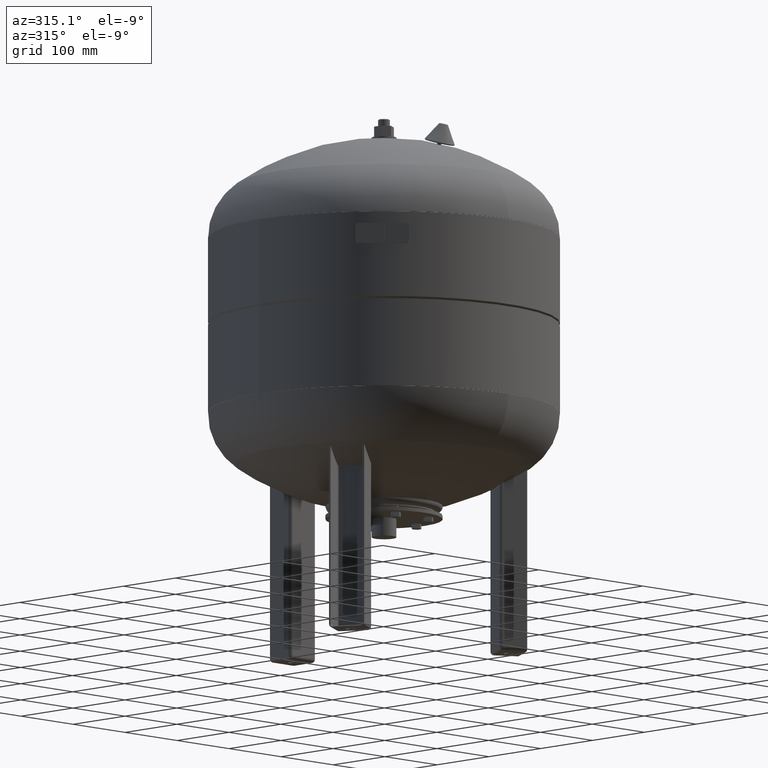
[diagram: clean part render]
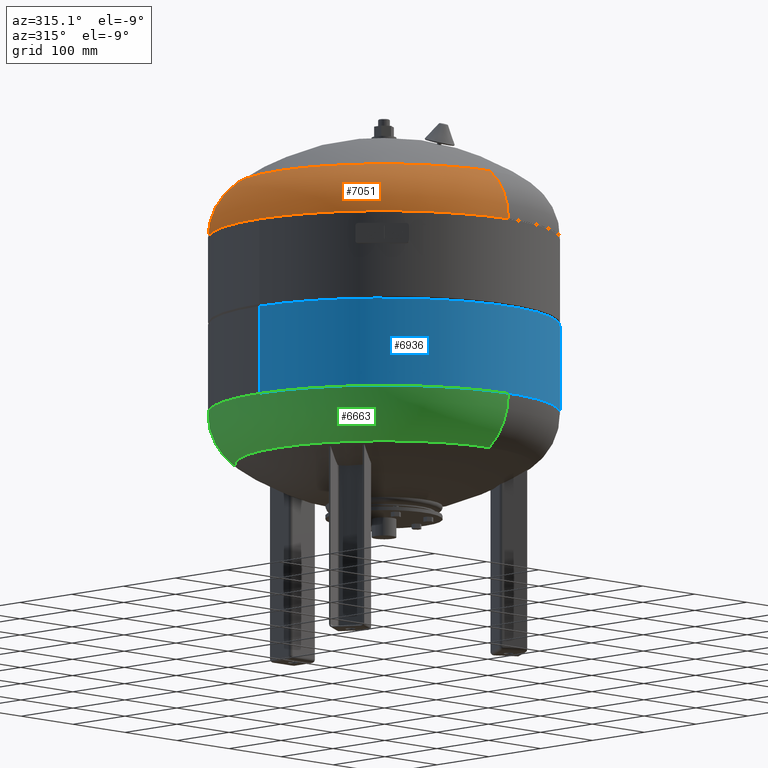
[diagram: same view with three faces highlighted in distinct colors, each labeled with its STEP entity id]
A machine part, auxiliary view with three faces highlighted in distinct colors.
Their STEP definitions:

[orange] entity #7051 — the highlighted toroidal blend (fillet) surface has major radius 154 mm and minor (blend) radius 86 mm.
#6956=CARTESIAN_POINT('',(-240.0,1.639618E-014,565.446016103952270));
#6957=VERTEX_POINT('',#6956);
#6981=CARTESIAN_POINT('',(-3.818310E-014,-239.999999999999970,565.446016103952160));
#6982=VERTEX_POINT('',#6981);
#6990=CARTESIAN_POINT('',(2.963866E-017,1.639618E-014,565.446016103952270));
#6991=DIRECTION('',(0.0,0.0,-1.0));
#6992=DIRECTION('',(-1.0,0.0,0.0));
#6993=AXIS2_PLACEMENT_3D('',#6990,#6991,#6992);
#6994=CIRCLE('',#6993,240.0);
#6995=EDGE_CURVE('',#6982,#6957,#6994,.T.);
#7000=CARTESIAN_POINT('',(-8.792549E-015,1.639618E-014,565.446016103952160));
#7001=DIRECTION('',(-6.645200E-017,3.061617E-016,-1.0));
#7002=DIRECTION('',(0.0,1.0,0.0));
#7003=AXIS2_PLACEMENT_3D('',#7000,#7001,#7002);
#7004=TOROIDAL_SURFACE('',#7003,153.999999999999970,86.0);
#7005=CARTESIAN_POINT('',(-8.792549E-015,240.000000000000030,565.446016103952390));
#7006=VERTEX_POINT('',#7005);
#7007=CARTESIAN_POINT('',(-4.111121E-015,203.325884543761560,635.894274520860560));
#7008=VERTEX_POINT('',#7007);
#7009=CARTESIAN_POINT('',(-8.792549E-015,154.0,565.446016103952270));
#7010=DIRECTION('',(1.0,0.0,0.0));
#7011=DIRECTION('',(0.0,1.0,0.0));
#7012=AXIS2_PLACEMENT_3D('',#7009,#7010,#7011);
#7013=CIRCLE('',#7012,86.0);
#7014=EDGE_CURVE('',#7006,#7008,#7013,.T.);
#7015=ORIENTED_EDGE('',*,*,#7014,.F.);
#7016=CARTESIAN_POINT('',(2.963866E-017,1.639618E-014,565.446016103952270));
#7017=DIRECTION('',(0.0,0.0,-1.0));
#7018=DIRECTION('',(-1.0,0.0,0.0));
#7019=AXIS2_PLACEMENT_3D('',#7016,#7017,#7018);
#7020=CIRCLE('',#7019,240.0);
#7021=EDGE_CURVE('',#6957,#7006,#7020,.T.);
#7022=ORIENTED_EDGE('',*,*,#7021,.F.);
#7023=ORIENTED_EDGE('',*,*,#6995,.F.);
#7024=CARTESIAN_POINT('',(-2.901054E-014,-203.325884543761560,635.894274520860340));
#7025=VERTEX_POINT('',#7024);
#7026=CARTESIAN_POINT('',(-2.765149E-014,-153.999999999999940,565.446016103952050));
#7027=DIRECTION('',(-1.0,0.0,0.0));
#7028=DIRECTION('',(0.0,-1.0,0.0));
#7029=AXIS2_PLACEMENT_3D('',#7026,#7027,#7028);
#7030=CIRCLE('',#7029,86.0);
#7031=EDGE_CURVE('',#6982,#7025,#7030,.T.);
#7032=ORIENTED_EDGE('',*,*,#7031,.T.);
#7033=CARTESIAN_POINT('',(-203.325884543761560,-5.172380E-015,635.894274520860560));
#7034=VERTEX_POINT('',#7033);
#7035=CARTESIAN_POINT('',(4.711066E-015,-5.172380E-015,635.894274520860450));
#7036=DIRECTION('',(0.0,0.0,-1.0));
#7037=DIRECTION('',(-1.0,0.0,0.0));
#7038=AXIS2_PLACEMENT_3D('',#7035,#7036,#7037);
#7039=CIRCLE('',#7038,203.325884543761560);
#7040=EDGE_CURVE('',#7025,#7034,#7039,.T.);
#7041=ORIENTED_EDGE('',*,*,#7040,.T.);
#7042=CARTESIAN_POINT('',(4.711066E-015,-5.172380E-015,635.894274520860450));
#7043=DIRECTION('',(0.0,0.0,-1.0));
#7044=DIRECTION('',(-1.0,0.0,0.0));
#7045=AXIS2_PLACEMENT_3D('',#7042,#7043,#7044);
#7046=CIRCLE('',#7045,203.325884543761560);
#7047=EDGE_CURVE('',#7034,#7008,#7046,.T.);
#7048=ORIENTED_EDGE('',*,*,#7047,.T.);
#7049=EDGE_LOOP('',(#7015,#7022,#7023,#7032,#7041,#7048));
#7050=FACE_OUTER_BOUND('',#7049,.T.);
#7051=ADVANCED_FACE('',(#7050),#7004,.T.);

[blue] entity #6936 — the highlighted cylindrical surface (partial cylindrical patch) has radius 240 mm, axis along (0, 0, -1).
#6736=CARTESIAN_POINT('',(240.0,2.204364E-014,325.000000000000060));
#6737=VERTEX_POINT('',#6736);
#6738=CARTESIAN_POINT('',(239.999999999999970,-1.305246E-029,445.000000000000060));
#6739=VERTEX_POINT('',#6738);
#6740=CARTESIAN_POINT('',(240.0,2.204364E-014,325.000000000000060));
#6741=DIRECTION('',(0.0,0.0,1.0));
#6742=VECTOR('',#6741,120.0);
#6743=LINE('',#6740,#6742);
#6744=EDGE_CURVE('',#6737,#6739,#6743,.T.);
#6746=CARTESIAN_POINT('',(-240.0,5.143419E-014,325.0));
#6747=VERTEX_POINT('',#6746);
#6755=CARTESIAN_POINT('',(-240.0,2.939055E-014,445.0));
#6756=VERTEX_POINT('',#6755);
#6757=CARTESIAN_POINT('',(-240.0,5.143419E-014,325.0));
#6758=DIRECTION('',(0.0,0.0,1.0));
#6759=VECTOR('',#6758,120.0);
#6760=LINE('',#6757,#6759);
#6761=EDGE_CURVE('',#6747,#6756,#6760,.T.);
#6904=CARTESIAN_POINT('',(-3.944305E-030,-6.526229E-030,445.000000000000060));
#6905=DIRECTION('',(0.0,0.0,-1.0));
#6906=DIRECTION('',(1.0,0.0,0.0));
#6907=AXIS2_PLACEMENT_3D('',#6904,#6905,#6906);
#6908=CIRCLE('',#6907,239.999999999999970);
#6909=EDGE_CURVE('',#6739,#6756,#6908,.T.);
#6919=CARTESIAN_POINT('',(7.347881E-015,1.102182E-014,385.000000000000060));
#6920=DIRECTION('',(1.224647E-016,1.836970E-016,-1.0));
#6921=DIRECTION('',(1.0,0.0,0.0));
#6922=AXIS2_PLACEMENT_3D('',#6919,#6920,#6921);
#6923=CYLINDRICAL_SURFACE('',#6922,240.0);
#6924=ORIENTED_EDGE('',*,*,#6744,.T.);
#6925=ORIENTED_EDGE('',*,*,#6909,.T.);
#6926=ORIENTED_EDGE('',*,*,#6761,.F.);
#6927=CARTESIAN_POINT('',(1.469576E-014,2.204364E-014,325.0));
#6928=DIRECTION('',(0.0,0.0,-1.0));
#6929=DIRECTION('',(1.0,0.0,0.0));
#6930=AXIS2_PLACEMENT_3D('',#6927,#6928,#6929);
#6931=CIRCLE('',#6930,240.0);
#6932=EDGE_CURVE('',#6737,#6747,#6931,.T.);
#6933=ORIENTED_EDGE('',*,*,#6932,.F.);
#6934=EDGE_LOOP('',(#6924,#6925,#6926,#6933));
#6935=FACE_OUTER_BOUND('',#6934,.T.);
#6936=ADVANCED_FACE('',(#6935),#6923,.T.);

[green] entity #6663 — the highlighted toroidal blend (fillet) surface has major radius 154 mm and minor (blend) radius 86 mm.
#6568=CARTESIAN_POINT('',(-240.0,8.193183E-017,324.553983896047730));
#6569=VERTEX_POINT('',#6568);
#6593=CARTESIAN_POINT('',(-3.818310E-014,240.0,324.553983896047840));
#6594=VERTEX_POINT('',#6593);
#6602=CARTESIAN_POINT('',(2.963866E-017,8.193183E-017,324.553983896047730));
#6603=DIRECTION('',(0.0,0.0,1.0));
#6604=DIRECTION('',(-1.0,0.0,0.0));
#6605=AXIS2_PLACEMENT_3D('',#6602,#6603,#6604);
#6606=CIRCLE('',#6605,240.0);
#6607=EDGE_CURVE('',#6594,#6569,#6606,.T.);
#6612=CARTESIAN_POINT('',(-8.792549E-015,8.193183E-017,324.553983896047840));
#6613=DIRECTION('',(-6.645200E-017,-1.836970E-016,1.0));
#6614=DIRECTION('',(0.0,-1.0,0.0));
#6615=AXIS2_PLACEMENT_3D('',#6612,#6613,#6614);
#6616=TOROIDAL_SURFACE('',#6615,153.999999999999970,86.0);
#6617=CARTESIAN_POINT('',(-8.792549E-015,-240.0,324.553983896047610));
#6618=VERTEX_POINT('',#6617);
#6619=CARTESIAN_POINT('',(-4.111121E-015,-203.325884543761560,254.105725479139470));
#6620=VERTEX_POINT('',#6619);
#6621=CARTESIAN_POINT('',(-8.792549E-015,-153.999999999999970,324.553983896047780));
#6622=DIRECTION('',(1.0,0.0,0.0));
#6623=DIRECTION('',(0.0,-1.0,0.0));
#6624=AXIS2_PLACEMENT_3D('',#6621,#6622,#6623);
#6625=CIRCLE('',#6624,86.0);
#6626=EDGE_CURVE('',#6618,#6620,#6625,.T.);
#6627=ORIENTED_EDGE('',*,*,#6626,.F.);
#6628=CARTESIAN_POINT('',(2.963866E-017,8.193183E-017,324.553983896047730));
#6629=DIRECTION('',(0.0,0.0,1.0));
#6630=DIRECTION('',(-1.0,0.0,0.0));
#6631=AXIS2_PLACEMENT_3D('',#6628,#6629,#6630);
#6632=CIRCLE('',#6631,240.0);
#6633=EDGE_CURVE('',#6569,#6618,#6632,.T.);
#6634=ORIENTED_EDGE('',*,*,#6633,.F.);
#6635=ORIENTED_EDGE('',*,*,#6607,.F.);
#6636=CARTESIAN_POINT('',(-2.901054E-014,203.325884543761560,254.105725479139550));
#6637=VERTEX_POINT('',#6636);
#6638=CARTESIAN_POINT('',(-2.765149E-014,153.999999999999970,324.553983896047900));
#6639=DIRECTION('',(-1.0,0.0,0.0));
#6640=DIRECTION('',(0.0,1.0,0.0));
#6641=AXIS2_PLACEMENT_3D('',#6638,#6639,#6640);
#6642=CIRCLE('',#6641,86.0);
#6643=EDGE_CURVE('',#6594,#6637,#6642,.T.);
#6644=ORIENTED_EDGE('',*,*,#6643,.T.);
#6645=CARTESIAN_POINT('',(-203.325884543761560,1.302307E-014,254.105725479139490));
#6646=VERTEX_POINT('',#6645);
#6647=CARTESIAN_POINT('',(4.711066E-015,1.302307E-014,254.105725479139520));
#6648=DIRECTION('',(0.0,0.0,1.0));
#6649=DIRECTION('',(-1.0,0.0,0.0));
#6650=AXIS2_PLACEMENT_3D('',#6647,#6648,#6649);
#6651=CIRCLE('',#6650,203.325884543761560);
#6652=EDGE_CURVE('',#6637,#6646,#6651,.T.);
#6653=ORIENTED_EDGE('',*,*,#6652,.T.);
#6654=CARTESIAN_POINT('',(4.711066E-015,1.302307E-014,254.105725479139520));
#6655=DIRECTION('',(0.0,0.0,1.0));
#6656=DIRECTION('',(-1.0,0.0,0.0));
#6657=AXIS2_PLACEMENT_3D('',#6654,#6655,#6656);
#6658=CIRCLE('',#6657,203.325884543761560);
#6659=EDGE_CURVE('',#6646,#6620,#6658,.T.);
#6660=ORIENTED_EDGE('',*,*,#6659,.T.);
#6661=EDGE_LOOP('',(#6627,#6634,#6635,#6644,#6653,#6660));
#6662=FACE_OUTER_BOUND('',#6661,.T.);
#6663=ADVANCED_FACE('',(#6662),#6616,.T.);